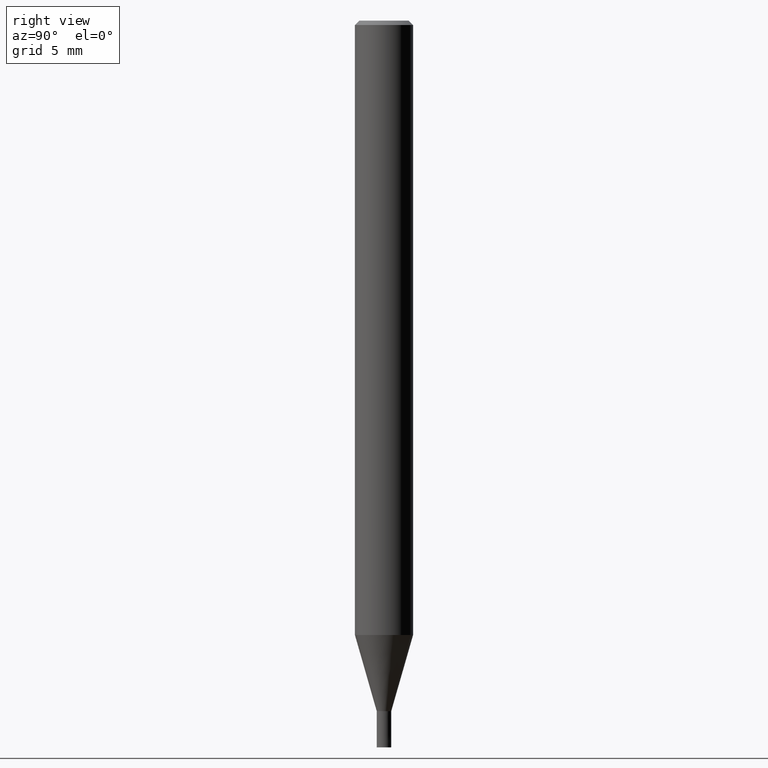
[diagram: clean part render]
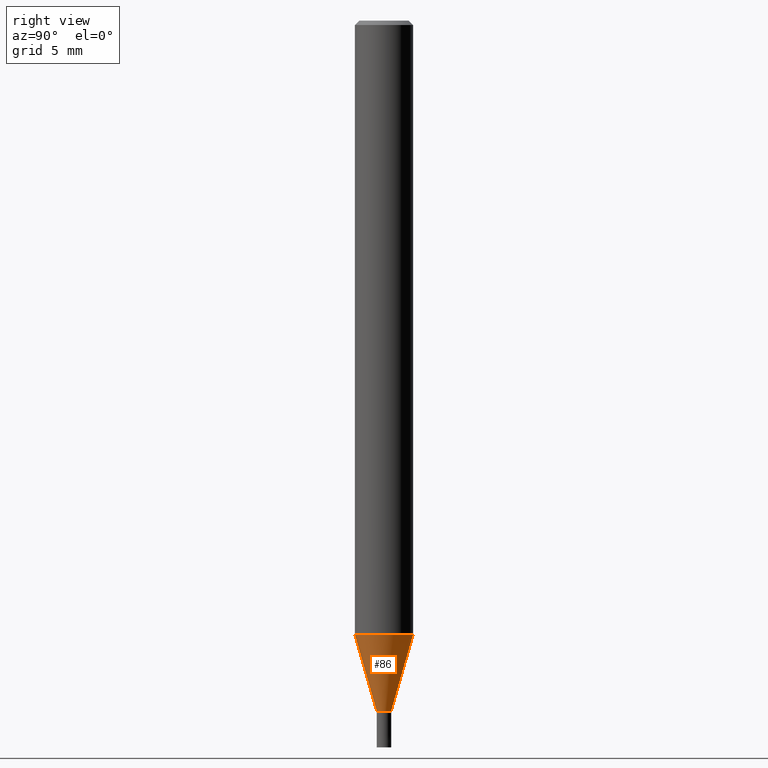
[diagram: same view with one face highlighted and labeled with its STEP entity id]
A machine part, right view. The second image highlights one B-rep face of the part: STEP entity #86.
In plain terms, the highlighted conical surface has half-angle 16 deg.
Its self-contained STEP definition (entity closure, byte-faithful):
#86=ADVANCED_FACE('',(#207),#208,.T.);
#90=VERTEX_POINT('',#213);
#92=VERTEX_POINT('',#215);
#132=VERTEX_POINT('',#261);
#146=EDGE_CURVE('',#132,#90,#276,.T.);
#150=VERTEX_POINT('',#281);
#158=EDGE_CURVE('',#90,#92,#289,.T.);
#160=EDGE_CURVE('',#132,#150,#291,.T.);
#184=EDGE_CURVE('',#92,#150,#319,.T.);
#207=FACE_OUTER_BOUND('',#334,.T.);
#208=CONICAL_SURFACE('',#335,1.24995,0.279258842899557);
#213=CARTESIAN_POINT('',(0.0,0.49995,-47.5));
#215=CARTESIAN_POINT('',(6.12241946593498E-017,-0.49995,-47.5));
#261=CARTESIAN_POINT('',(0.0,1.99995,-42.269));
#276=LINE('',#415,#416);
#281=CARTESIAN_POINT('',(2.44915147732706E-016,-1.99995,-42.269));
#289=CIRCLE('',#435,0.49995);
#291=CIRCLE('',#438,1.99995);
#319=LINE('',#473,#474);
#334=EDGE_LOOP('',(#477,#478,#479,#480));
#335=AXIS2_PLACEMENT_3D('',#481,#482,#483);
#415=CARTESIAN_POINT('',(-1.53069671196028E-016,1.24995,-44.8845));
#416=VECTOR('',#560,1.0);
#435=AXIS2_PLACEMENT_3D('',#574,#575,#576);
#438=AXIS2_PLACEMENT_3D('',#577,#578,#579);
#473=CARTESIAN_POINT('',(1.53069671196028E-016,-1.24995,-44.8845));
#474=VECTOR('',#623,1.0);
#477=ORIENTED_EDGE('',*,*,#146,.F.);
#478=ORIENTED_EDGE('',*,*,#160,.T.);
#479=ORIENTED_EDGE('',*,*,#184,.F.);
#480=ORIENTED_EDGE('',*,*,#158,.F.);
#481=CARTESIAN_POINT('',(0.0,0.0,-44.8845));
#482=DIRECTION('',(-0.0,-0.0,1.0));
#483=DIRECTION('',(0.0,1.0,0.0));
#560=DIRECTION('',(3.37554511665357E-017,-0.275643279664314,-0.961259997282682));
#574=CARTESIAN_POINT('',(0.0,0.0,-47.5));
#575=DIRECTION('',(0.0,0.0,-1.0));
#576=DIRECTION('',(0.0,1.0,0.0));
#577=CARTESIAN_POINT('',(0.0,0.0,-42.269));
#578=DIRECTION('',(0.0,0.0,-1.0));
#579=DIRECTION('',(0.0,1.0,0.0));
#623=DIRECTION('',(3.37554511665357E-017,-0.275643279664314,0.961259997282682));